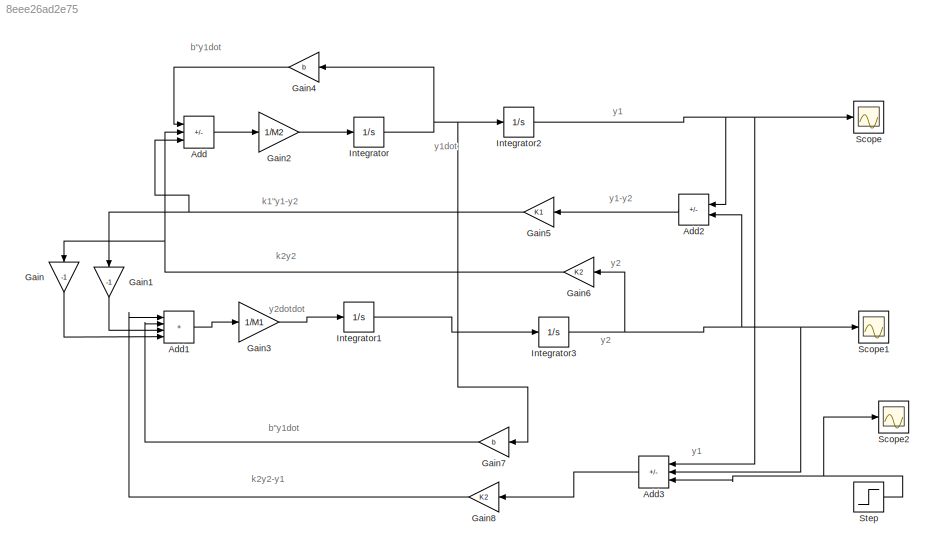
MODEL slx_8eee26ad2e75
KIND model
CONFIG AbsTol = auto
CONFIG EnableMultiTasking = off
CONFIG FixedStep = auto
CONFIG MaxStep = auto
CONFIG MinStep = auto
CONFIG RelTol = 1e-3
CONFIG SampleTimeConstraint = Unconstrained
CONFIG SolverName = VariableStepAuto
CONFIG StartTime = 0.0
CONFIG StopTime = 10.0
WORKSPACE source: mxarray member
WORKSPACE K1: Simulink.Parameter (value not decoded)
WORKSPACE K2: Simulink.Parameter (value not decoded)
WORKSPACE M1: Simulink.Parameter (value not decoded)
WORKSPACE M2: Simulink.Parameter (value not decoded)
WORKSPACE b: Simulink.Parameter (value not decoded)
BLOCK [Sum] Add
  IconShape = rectangular
  Inputs = +-+
  Ports = [3, 1]
BLOCK [Sum] Add1
  IconShape = rectangular
  Inputs = ++++
  Ports = [4, 1]
BLOCK [Sum] Add2
  IconShape = rectangular
  Inputs = +-
  NameLocation = top
  Ports = [2, 1]
BLOCK [Sum] Add3
  IconShape = rectangular
  Inputs = -++
  NameLocation = top
  Ports = [3, 1]
BLOCK [Gain] Gain
  Gain = -1
  NameLocation = left
BLOCK [Gain] Gain1
  Gain = -1
  NameLocation = left
BLOCK [Gain] Gain2
  Gain = 1/M2
BLOCK [Gain] Gain3
  Gain = 1/M1
BLOCK [Gain] Gain4
  Gain = b
  NameLocation = top
BLOCK [Gain] Gain5
  Gain = K1
  NameLocation = top
BLOCK [Gain] Gain6
  Gain = K2
  NameLocation = top
BLOCK [Gain] Gain7
  Gain = b
  NameLocation = top
BLOCK [Gain] Gain8
  Gain = K2
  NameLocation = top
BLOCK [Integrator] Integrator
  Ports = [1, 1]
BLOCK [Integrator] Integrator1
  Ports = [1, 1]
BLOCK [Integrator] Integrator2
  Ports = [1, 1]
BLOCK [Integrator] Integrator3
  Ports = [1, 1]
BLOCK [Scope] Scope
  Floating = off
  NumInputPorts = 1
  Ports = [1]
  ScopeSpecificationString = Simulink.scopes.TimeScopeBlockCfg('CurrentConfiguration', extmgr.ConfigurationSet(extmgr.Configuration('Core','General UI',true),extmgr.Configuration('Core','Source UI',true),extmgr.Configuration('Sources','WiredSimulink',true),extmgr.Configuration('Visuals','Time Domain',true,'SerializedDisplays',{struct('MinYLimReal','-0.21696','MaxYLimReal','0.02411','YLabelReal','','MinYLimMag','0.00000','MaxY...<+1357ch>
BLOCK [Scope] Scope1
  Floating = off
  NumInputPorts = 1
  Ports = [1]
  ScopeSpecificationString = Simulink.scopes.TimeScopeBlockCfg('CurrentConfiguration', extmgr.ConfigurationSet(extmgr.Configuration('Core','General UI',true),extmgr.Configuration('Core','Source UI',true),extmgr.Configuration('Sources','WiredSimulink',true,'DataLoggingVariableName','ScopeData1'),extmgr.Configuration('Visuals','Time Domain',true,'SerializedDisplays',{struct('MinYLimReal','-0.03764','MaxYLimReal','0.33874','YLab...<+1396ch>
BLOCK [Scope] Scope2
  Floating = off
  NumInputPorts = 1
  Ports = [1]
  ScopeSpecificationString = Simulink.scopes.TimeScopeBlockCfg('CurrentConfiguration', extmgr.ConfigurationSet(extmgr.Configuration('Core','General UI',true),extmgr.Configuration('Core','Source UI',true),extmgr.Configuration('Sources','WiredSimulink',true,'DataLoggingVariableName','ScopeData2'),extmgr.Configuration('Visuals','Time Domain',true,'SerializedDisplays',{struct('MinYLimReal','-0.125','MaxYLimReal','1.125','YLabelRe...<+1351ch>
BLOCK [Step] Step
  SampleTime = 0
ANNOTATION (root): b"y1dot
ANNOTATION (root): k1"y1-y2
ANNOTATION (root): k2y2
ANNOTATION (root): k2y2-y1
ANNOTATION (root): y1
ANNOTATION (root): y1-y2
ANNOTATION (root): y1dot
ANNOTATION (root): y2
ANNOTATION (root): y2dotdot
LINE Add1:1 -> Gain3:1
LINE Add2:1 -> Gain5:1
LINE Add3:1 -> Gain8:1
LINE Add:1 -> Gain2:1
LINE Gain1:1 -> Add1:3
LINE Gain2:1 -> Integrator:1
LINE Gain3:1 -> Integrator1:1
LINE Gain4:1 -> Add:1
NET Gain5:1 -> Add:3, Gain1:1
NET Gain6:1 -> Add:2, Gain:1
LINE Gain7:1 -> Add1:2
LINE Gain8:1 -> Add1:1
LINE Gain:1 -> Add1:4
LINE Integrator1:1 -> Integrator3:1
NET Integrator2:1 -> Add2:1, Add3:1, Scope:1
NET Integrator3:1 -> Add2:2, Add3:2, Gain6:1, Scope1:1
NET Integrator:1 -> Gain4:1, Gain7:1, Integrator2:1
NET Step:1 -> Add3:3, Scope2:1
note: NET lines group one-source signal fan-out (src -> all destinations, sorted); 1:1 wires keep LINE
